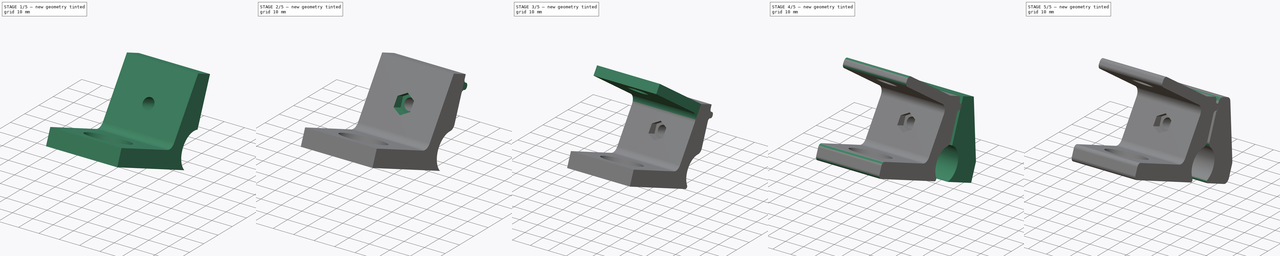
[diagram: build sequence overview — one tinted view per stage of 5, left to right]
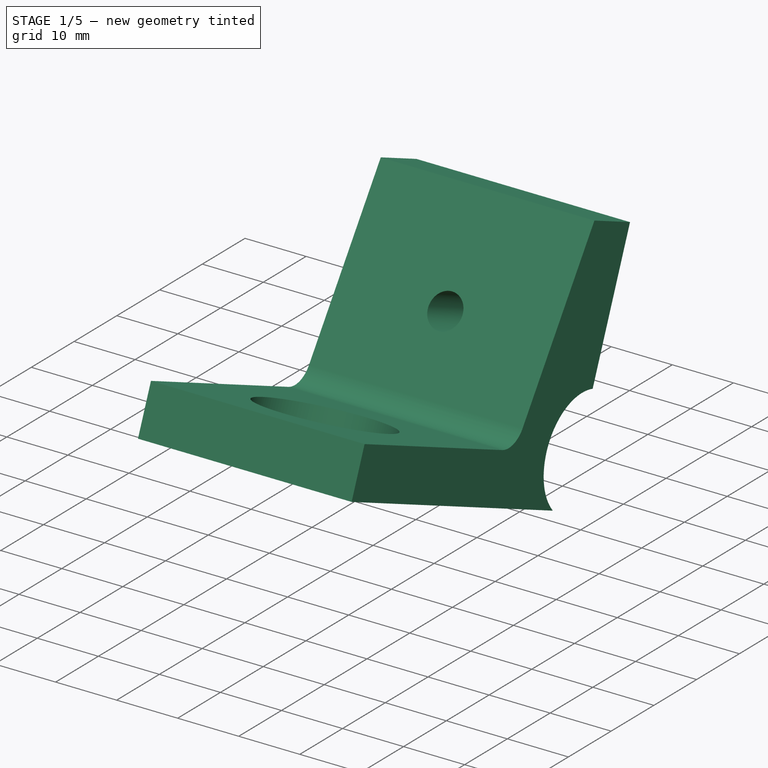
[diagram: stage 1 of 5 — iso view after this stage's code; geometry added in this stage tinted green]
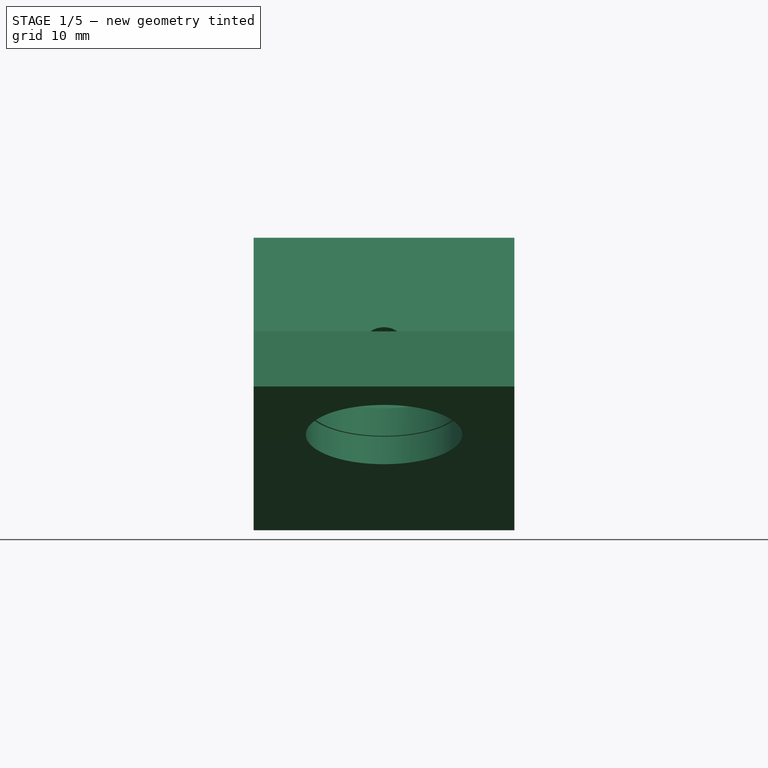
[diagram: stage 1 of 5 — front view after this stage's code; geometry added in this stage tinted green]
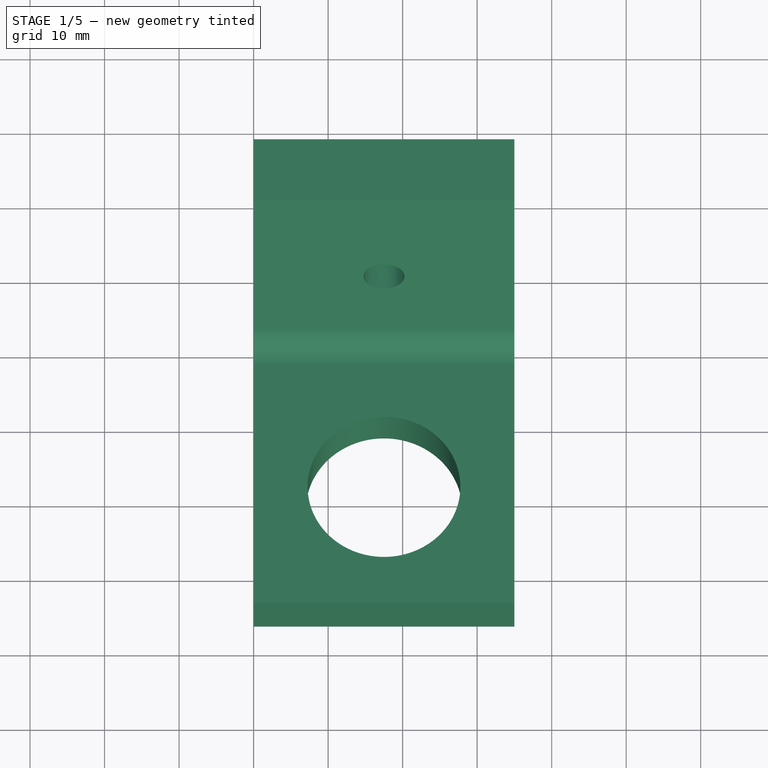
[diagram: stage 1 of 5 — top view after this stage's code; geometry added in this stage tinted green]
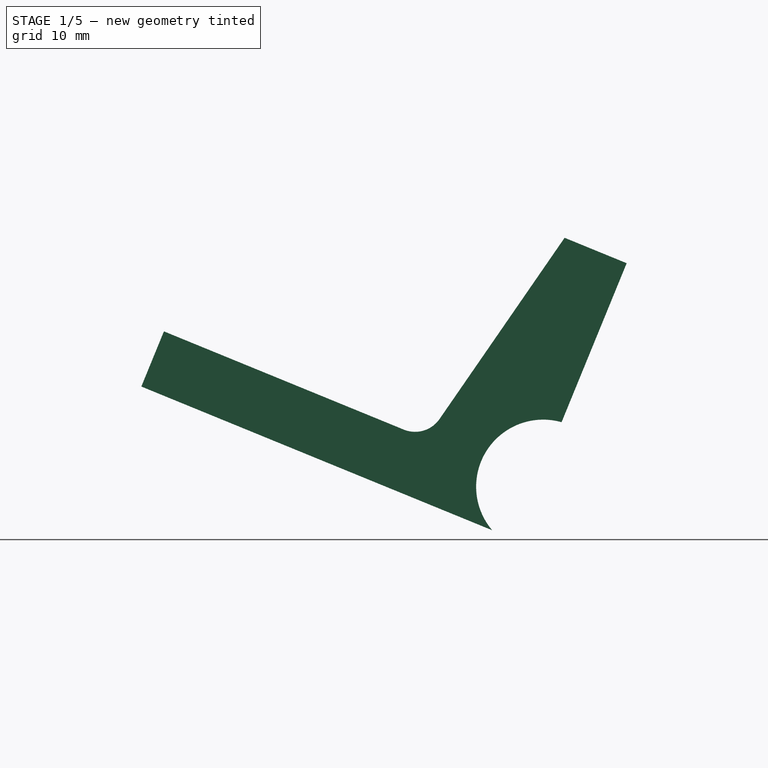
[diagram: stage 1 of 5 — right view after this stage's code; geometry added in this stage tinted green]
FCSTD DOCUMENT  (FreeCAD 0.18R16155 (Git))
Label: rim_to_rod_adapter_for_120cm_dish
License: All rights reserved
LicenseURL: http://en.wikipedia.org/wiki/All_rights_reserved
objects: Sketcher::SketchObject×11, PartDesign::Fillet×8, PartDesign::Pocket×5, PartDesign::Pad×4, PartDesign::Hole×3, PartDesign::Plane×3, PartDesign::Body×2, PartDesign::Chamfer×1, App::Part×1
note: 49 computed .brp shape members not serialized (recipe doc carries the construction recipe); baked Part::Feature solids carry a one-line shape summary decoded from their .brp

FEATURE [Sketcher::SketchObject] Sketch
  MapMode = 5
  Placement = pos=(0,0,0) rot=(0.57735,0.57735,0.57735;2.0944rad)
  Support = -> [YZ_Plane001]
  expr: Constraints[72] = Constraints.rim_dia / 2 - 1mm
  sketch-geometry (28):
    g0: GeomPoint X=-450 Y=0 Z=0
    g1: ArcOfParabola [constr] CenterX=0 CenterY=0 CenterZ=0 NormalX=0 NormalY=0 NormalZ=1 Focal=450 AngleXU=-3.14159 StartAngle=-600 EndAngle=0
    g2: GeomPoint X=-450 Y=0 Z=0
    g3: LineSegment [constr] StartX=0 StartY=0 StartZ=0 EndX=-450 EndY=0 EndZ=0
    g4: Circle [constr] CenterX=-192.512 CenterY=604.992 CenterZ=0 NormalX=0 NormalY=0 NormalZ=1 AngleXU=0 Radius=9
    g5: GeomPoint X=-200 Y=600 Z=0
    g6: ArcOfParabola [constr] CenterX=2 CenterY=0 CenterZ=0 NormalX=0 NormalY=0 NormalZ=1 Focal=450 AngleXU=-3.14159 StartAngle=-596.588 EndAngle=0
    g7: GeomPoint X=-448 Y=0 Z=0
    g8: LineSegment [constr] StartX=2 StartY=0 StartZ=0 EndX=-448 EndY=0 EndZ=0
    g9: LineSegment [constr] StartX=0 StartY=0 StartZ=0 EndX=2 EndY=0 EndZ=0
    g10: GeomPoint X=-195.732 Y=596.588 Z=0
    g11: GeomPoint X=-195.732 Y=596.588 Z=0
    g12: ArcOfCircle [constr] CenterX=-192.512 CenterY=604.992 CenterZ=0 NormalX=0 NormalY=0 NormalZ=1 AngleXU=0 Radius=9 StartAngle=4.34646 EndAngle=10.0128
    g13: LineSegment [constr] StartX=-450 StartY=0 StartZ=0 EndX=-200.84 EndY=608.403 EndZ=0
    g14: LineSegment StartX=-199.359 StartY=599.152 StartZ=0 EndX=-246.441 EndY=618.433 EndZ=0
    g15: LineSegment [constr] StartX=-191.728 StartY=596.026 StartZ=0 EndX=-177.847 EndY=590.342 EndZ=0
    g16: LineSegment StartX=-246.441 StartY=618.433 StartZ=0 EndX=-243.409 EndY=625.836 EndZ=0
    g17: LineSegment [constr] StartX=-189.638 StartY=638.395 StartZ=0 EndX=-171.13 EndY=630.815 EndZ=0
    g18: LineSegment [constr] StartX=-171.13 StartY=630.815 StartZ=0 EndX=-174.815 EndY=597.745 EndZ=0
    g19: LineSegment [constr] StartX=-174.815 StartY=597.745 StartZ=0 EndX=-177.847 EndY=590.342 EndZ=0
    g20: LineSegment [constr] StartX=-189.638 StartY=638.395 StartZ=0 EndX=-204.797 EndY=601.379 EndZ=0
    g21: LineSegment [constr] StartX=-192.512 StartY=604.992 StartZ=0 EndX=-180.384 EndY=634.605 EndZ=0
    g22: LineSegment StartX=-181.31 StartY=634.984 StartZ=0 EndX=-190.047 EndY=613.648 EndZ=0
    g23: LineSegment StartX=-189.638 StartY=638.395 StartZ=0 EndX=-181.31 EndY=634.984 EndZ=0
    g24: ArcOfCircle CenterX=-192.512 CenterY=604.992 CenterZ=0 NormalX=0 NormalY=0 NormalZ=1 AngleXU=0 Radius=9 StartAngle=1.29344 EndAngle=3.84781
    g25: LineSegment StartX=-189.638 StartY=638.395 StartZ=0 EndX=-208.243 EndY=611.435 EndZ=0
    g26: LineSegment StartX=-243.409 StartY=625.836 StartZ=0 EndX=-208.243 EndY=611.435 EndZ=0
    g27: LineSegment [constr] StartX=-199.359 StartY=599.152 StartZ=0 EndX=-195.543 EndY=597.589 EndZ=0
  constraints (75):
    c: PointOnObject(g0,g-1)
    c: InternalAlignment(g2,g1)
    c: Coincident(g2,g3)
    c: Coincident(g1,g3)
    c: Coincident(g2,g0)
    c: Coincident(g1,g-1)
    c: DistanceX(g0,g1) = 450
    c: DistanceY(g1,g1) = 600
    c: Horizontal(g1,g1)
    c: PointOnObject(g5,g4)
    c: Tangent(g1,g4,g5) = -1.5708
    c: Coincident(g5,g1)
    c: Diameter(g4) = 18  'rim_dia'
    c: PointOnObject(g6,g-1)
    c: InternalAlignment(g7,g6)
    c: Coincident(g7,g8)
    c: Coincident(g6,g8)
    c: PointOnObject(g7,g3)
    c: DistanceX(g1,g6) = 2  'thickness'
    c: DistanceX(g0,g7) = 2
    c: Horizontal(g6,g6)
    c: Coincident(g9,g1)
    c: Coincident(g9,g6)
    c: Coincident(g10,g11)
    c: Coincident(g10,g6)
    c: Coincident(g12,g4)
    c: Coincident(g12,g1)
    c: Coincident(g12,g6)
    c: DistanceX(g1,g1) = 200
    c: Distance(g1,g0) = 650
    c: Tangent(g13,g12)
    c: Coincident(g13,g0)
    c: Perpendicular(g13,g14)
    c: PointOnObject(g14,g4)
    c: Tangent(g15,g14)
    c: Perpendicular(g15,g19)
    c: Perpendicular(g14,g16)
    c: Equal(g19,g16)
    c: Coincident(g19,g18)
    c: Coincident(g18,g17)
    c: Coincident(g16,g14)
    c: Distance(g16) = 8
    c: Distance(g15,g14) = 8.24621
    c: Coincident(g19,g15)
    c: Parallel(g17,g14)
    c: PointOnObject(g20,g14)
    c: Perpendicular(g14,g20)
    c: Distance(g20) = 40
    c: Distance(g17) = 20
    c: Perpendicular(g14,g21)
    c: Symmetric(g17,g17,g21)
    c: Distance(g15) = 15
    c: PointOnObject(g13,g4)
    c: PointOnObject(g15,g4)
    c: PointOnObject(g22,g17)
    c: Coincident(g23,g22)
    c: Perpendicular(g14,g22)
    c: Coincident(g24,g14)
    c: Coincident(g24,g4)
    c: Coincident(g24,g22)
    c: Coincident(g25,g26)
    c: Coincident(g23,g25)
    c: Coincident(g23,g17)
    c: Parallel(g26,g14)
    c: Coincident(g16,g26)
    c: Distance(g26) = 38
    c: Distance(g21,g22) = 1
    c: Distance(g25,g13) = 8
    c: Coincident(g21,g24)
    c: Coincident(g20,g23)
    c: Parallel(g27,g14)
    c: Coincident(g27,g14)
    c: Distance(g27,g24) = 8
    c: PointOnObject(g27,g21)
    c: Distance(g20) = 40
FEATURE [PartDesign::Pad] Pad
  Length = 35
  Length2 = 100
  Placement = pos=(0,0,0) rot=(0.57735,0.57735,0.57735;2.0944rad)
  Profile = -> Sketch
  Type = 0
FEATURE [PartDesign::Fillet] Fillet
  Base = -> Pad [Edge17]
  BaseFeature = -> Pad
  Placement = pos=(0,0,0) rot=(0.57735,0.57735,0.57735;2.0944rad)
  Radius = 4
FEATURE [PartDesign::Hole] Hole
  BaseFeature = -> Fillet
  Depth = 25
  DepthType = 1
  Diameter = 20.5
  DrillPoint = 1
  DrillPointAngle = 118
  HoleCutCountersinkAngle = 90
  HoleCutDepth = 4
  HoleCutDiameter = 21
  HoleCutType = 1
  ModelActualThread = false
  Placement = pos=(0,0,0) rot=(0.57735,0.57735,0.57735;2.0944rad)
  Profile = -> Sketch001
  Tapered = false
  TaperedAngle = 90
  ThreadAngle = 0
  ThreadClass = 0
  ThreadCutOffInner = 0
  ThreadCutOffOuter = 0
  ThreadDirection = 0
  ThreadFit = 0
  ThreadPitch = 0
  ThreadSize = 0
  ThreadType = 0
  Threaded = false
FEATURE [PartDesign::Plane] DatumPlane
  AttachmentOffset = pos=(0,0,6) rot=(0,0,1;0rad)
  Length = 753.21
  MapMode = 5
  Placement = pos=(-2.752e-13,-372.412,152.514) rot=(0.638831,0.638831,0.428706;3.9516rad)
  ResizeMode = 0
  Support = -> [Hole]
  Width = 80.9319
FEATURE [Sketcher::SketchObject] Sketch003
  ExternalGeometry = -> [Hole]
  MapMode = 5
  Placement = pos=(-2.796e-13,-377.965,154.788) rot=(0.638831,0.638831,0.428706;3.9516rad)
  Support = -> [Hole]
  sketch-geometry (3):
    g0: Circle CenterX=501.904 CenterY=17.5 CenterZ=0 NormalX=0 NormalY=0 NormalZ=1 AngleXU=0 Radius=3.36332
    g1: GeomPoint X=495.848 Y=17.5 Z=0
    g2: LineSegment [constr] StartX=495.848 StartY=17.5 StartZ=0 EndX=501.904 EndY=17.5 EndZ=0
  constraints (5):
    c: Symmetric(g-6,g-6,g1)
    c: Coincident(g2,g1)
    c: Coincident(g2,g0)
    c: Perpendicular(g-6,g2)
    c: Distance(g0,g-3) = 17  'screw_dist_from_outer_edge'
FEATURE [PartDesign::Hole] Hole001
  BaseFeature = -> Hole
  Depth = 25
  DepthType = 1
  Diameter = 5.5
  DrillPoint = 1
  DrillPointAngle = 118
  HoleCutCountersinkAngle = 90
  HoleCutDepth = 0
  HoleCutDiameter = 5
  HoleCutType = 0
  ModelActualThread = false
  Placement = pos=(0,0,0) rot=(0.57735,0.57735,0.57735;2.0944rad)
  Profile = -> Sketch003
  Tapered = false
  TaperedAngle = 90
  ThreadAngle = 60
  ThreadClass = 0
  ThreadCutOffInner = 0.0866025
  ThreadCutOffOuter = 0.173205
  ThreadDirection = 0
  ThreadFit = 0
  ThreadPitch = 0.8
  ThreadSize = 6
  ThreadType = 1
  Threaded = false
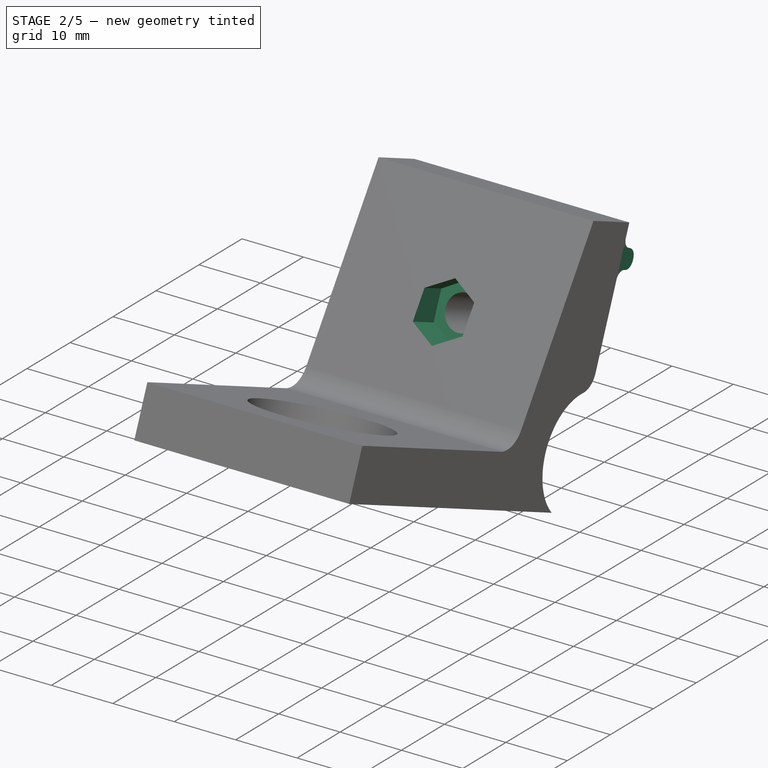
[diagram: stage 2 of 5 — iso view after this stage's code; geometry added in this stage tinted green]
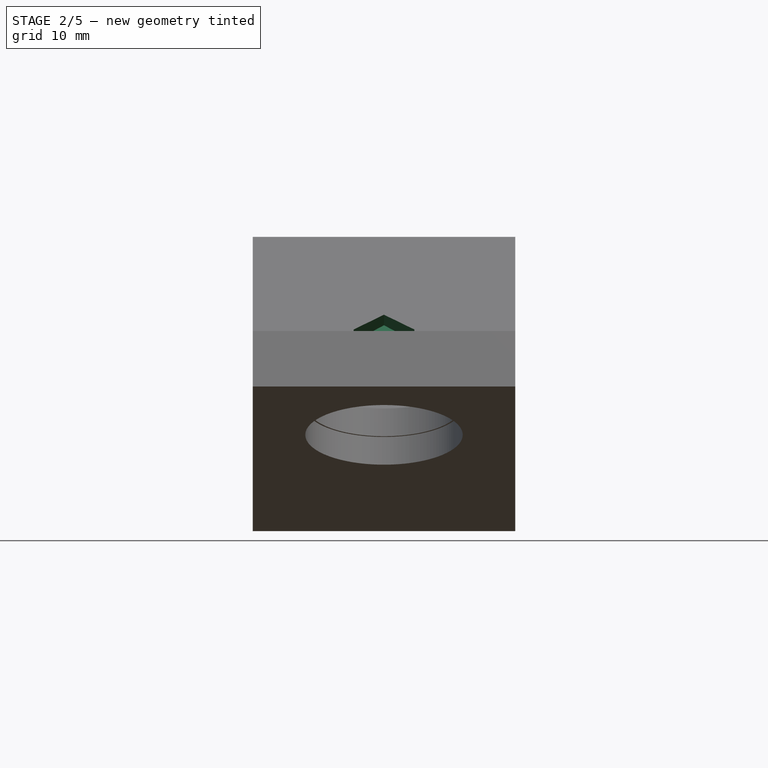
[diagram: stage 2 of 5 — front view after this stage's code; geometry added in this stage tinted green]
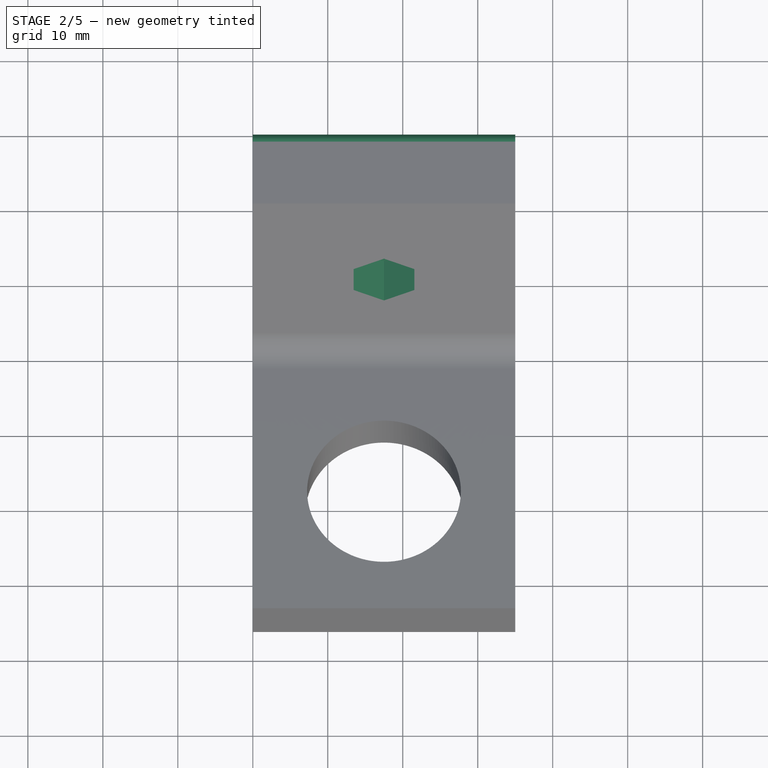
[diagram: stage 2 of 5 — top view after this stage's code; geometry added in this stage tinted green]
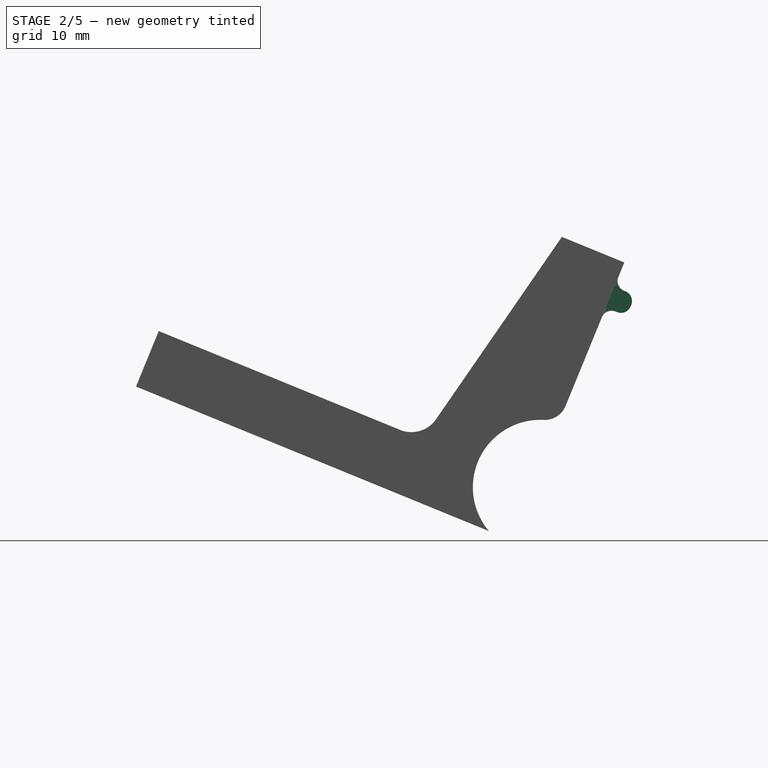
[diagram: stage 2 of 5 — right view after this stage's code; geometry added in this stage tinted green]
FEATURE [PartDesign::Plane] DatumPlane002
  AttachmentOffset = pos=(0,0,-8) rot=(0,0,1;0rad)
  Length = 753.21
  MapMode = 11
  Placement = pos=(17.5,-195.155,622.284) rot=(0.638831,0.638831,0.428706;3.9516rad)
  ResizeMode = 0
  Support = -> [Hole001]
  Width = 80.9319
FEATURE [Sketcher::SketchObject] Sketch005
  MapMode = 5
  Placement = pos=(17.5,-195.155,622.284) rot=(0.638831,0.638831,0.428706;3.9516rad)
  Support = -> [DatumPlane002]
  sketch-geometry (7):
    g0: LineSegment StartX=2.33827 StartY=-4.05 StartZ=0 EndX=4.67654 EndY=1.99458e-11 EndZ=0
    g1: LineSegment StartX=4.67654 StartY=1.99458e-11 StartZ=0 EndX=2.33827 EndY=4.05 EndZ=0
    g2: LineSegment StartX=2.33827 StartY=4.05 StartZ=0 EndX=-2.33827 EndY=4.05 EndZ=0
    g3: LineSegment StartX=-2.33827 StartY=4.05 StartZ=0 EndX=-4.67654 EndY=1.74598e-11 EndZ=0
    g4: LineSegment StartX=-4.67654 StartY=1.74598e-11 StartZ=0 EndX=-2.33827 EndY=-4.05 EndZ=0
    g5: LineSegment StartX=-2.33827 StartY=-4.05 StartZ=0 EndX=2.33827 EndY=-4.05 EndZ=0
    g6: Circle [constr] CenterX=0 CenterY=0 CenterZ=0 NormalX=0 NormalY=0 NormalZ=1 AngleXU=0 Radius=4.67654
  constraints (16):
    c: Coincident(g0,g1)
    c: Coincident(g1,g2)
    c: Coincident(g2,g3)
    c: Coincident(g3,g4)
    c: Coincident(g4,g5)
    c: Coincident(g5,g0)
    c: Equal(g0, g1-g5) x5
    c: PointOnObject(g0,g6)
    c: PointOnObject(g1,g6)
    c: PointOnObject(g2,g6)
    c: PointOnObject(g3,g6)
    c: PointOnObject(g4,g6)
    c: PointOnObject(g5,g6)
    c: Coincident(g6,g-1)
    c: Horizontal(g2)
    c: Distance(g2,g4) = 8.1
FEATURE [PartDesign::Pocket] Pocket001
  BaseFeature = -> Hole001
  Length = 15
  Length2 = 100
  Placement = pos=(0,0,0) rot=(0.57735,0.57735,0.57735;2.0944rad)
  Profile = -> Sketch005
  Type = 0
FEATURE [Sketcher::SketchObject] Sketch006
  ExternalGeometry = -> [Pocket001]
  MapMode = 5
  Placement = pos=(-3.827e-13,-377.965,154.788) rot=(0.638831,0.638831,0.428706;3.9516rad)
  Support = -> [Pocket001]
  sketch-geometry (6):
    g0: LineSegment StartX=515.404 StartY=35 StartZ=0 EndX=515.404 EndY=-8.811e-13 EndZ=0
    g1: LineSegment StartX=515.404 StartY=-8.83e-13 StartZ=0 EndX=512.404 EndY=-8.83e-13 EndZ=0
    g2: LineSegment StartX=512.404 StartY=-8.83e-13 StartZ=0 EndX=512.404 EndY=35 EndZ=0
    g3: LineSegment StartX=512.404 StartY=35 StartZ=0 EndX=515.404 EndY=35 EndZ=0
    g4: LineSegment StartX=515.404 StartY=35 StartZ=0 EndX=515.404 EndY=-8.811e-13 EndZ=0
    g5: GeomPoint X=513.904 Y=35 Z=0
  constraints (15):
    c: Coincident(g1,g2)
    c: Coincident(g2,g3)
    c: Coincident(g3,g4)
    c: Coincident(g4,g1)
    c: Horizontal(g1)
    c: Horizontal(g3)
    c: Vertical(g2)
    c: Coincident(g1,g0)
    c: Coincident(g0,g3)
    c: DistanceX(g3,g3) = 3
    c: Horizontal(g-3,g0)
    c: Symmetric(g0,g2,g5)
    c: DistanceX(g5,g-3) = 5
    c: Equal(g0,g-3)
    c: Equal(g1,g3)
FEATURE [PartDesign::Pad] Pad002
  BaseFeature = -> Pocket001
  Length = 3
  Length2 = 100
  Placement = pos=(0,0,0) rot=(0.57735,0.57735,0.57735;2.0944rad)
  Profile = -> Sketch006
  Type = 0
FEATURE [PartDesign::Fillet] Fillet002
  Base = -> Pad002 [Edge43,Edge63,Edge62,Edge39]
  BaseFeature = -> Pad002
  Placement = pos=(0,0,0) rot=(0.57735,0.57735,0.57735;2.0944rad)
  Radius = 1.4
FEATURE [PartDesign::Fillet] Fillet004
  Base = -> Fillet002 [Edge36]
  BaseFeature = -> Fillet002
  Placement = pos=(0,0,0) rot=(0.57735,0.57735,0.57735;2.0944rad)
  Radius = 3
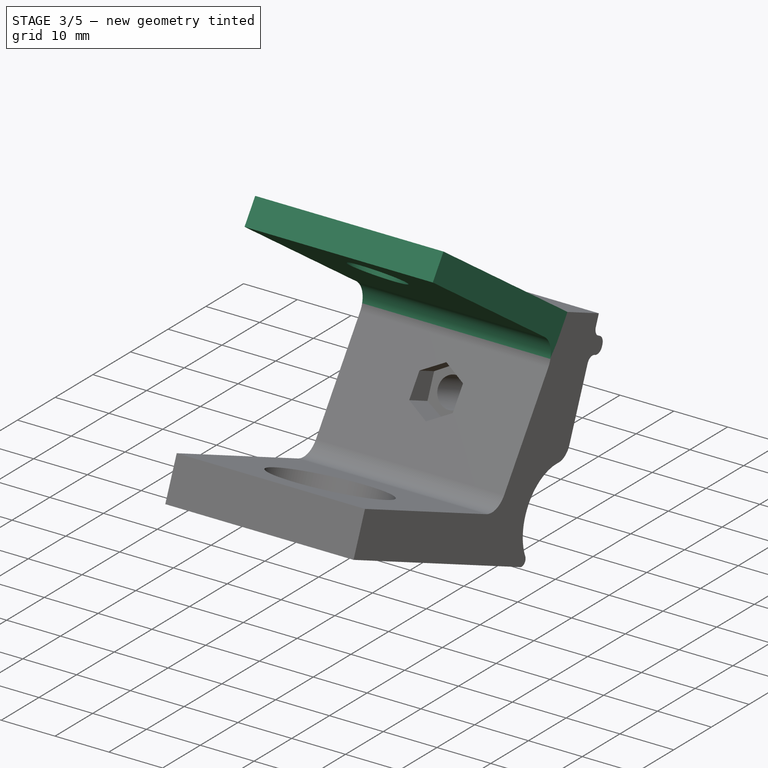
[diagram: stage 3 of 5 — iso view after this stage's code; geometry added in this stage tinted green]
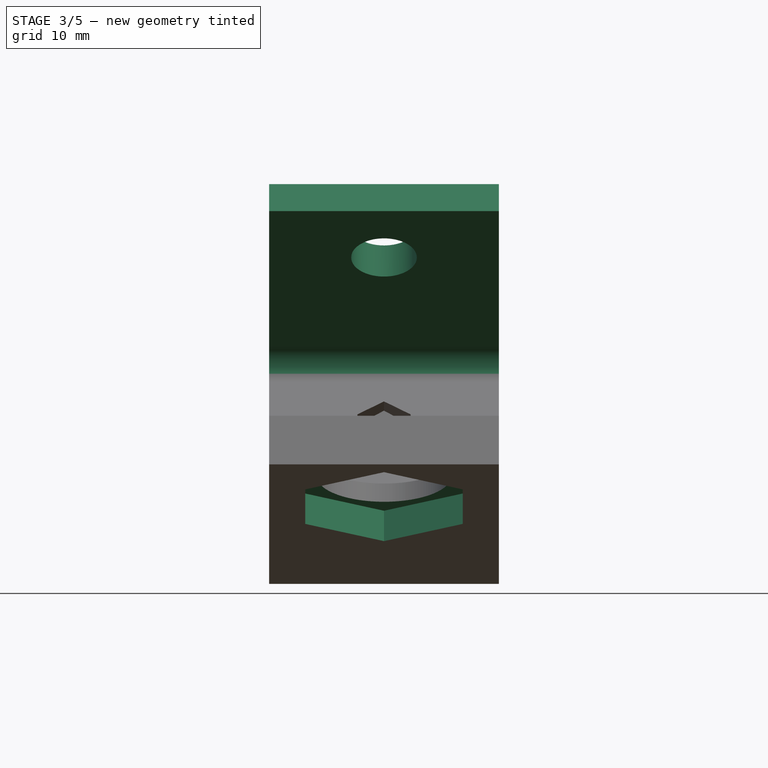
[diagram: stage 3 of 5 — front view after this stage's code; geometry added in this stage tinted green]
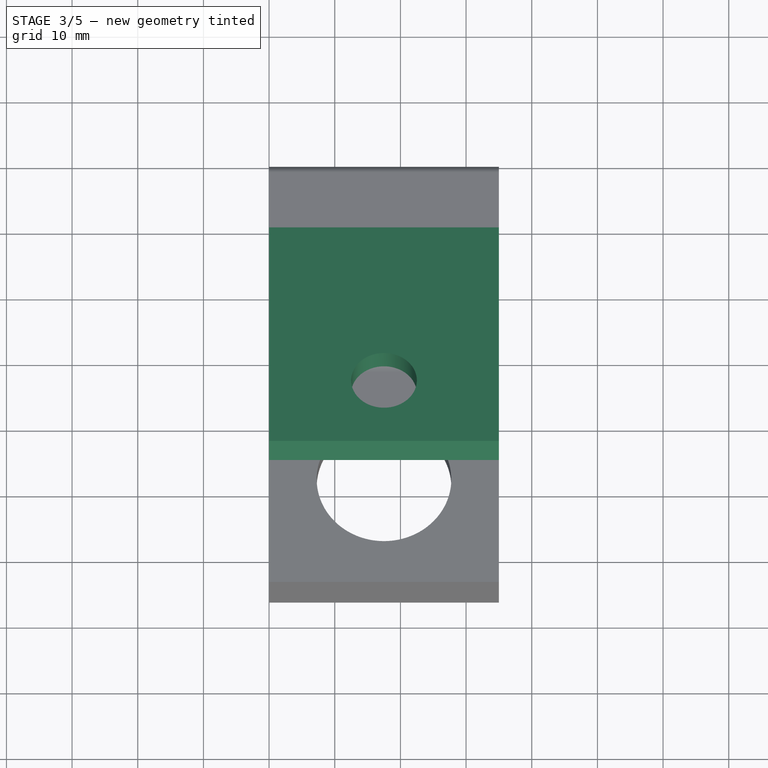
[diagram: stage 3 of 5 — top view after this stage's code; geometry added in this stage tinted green]
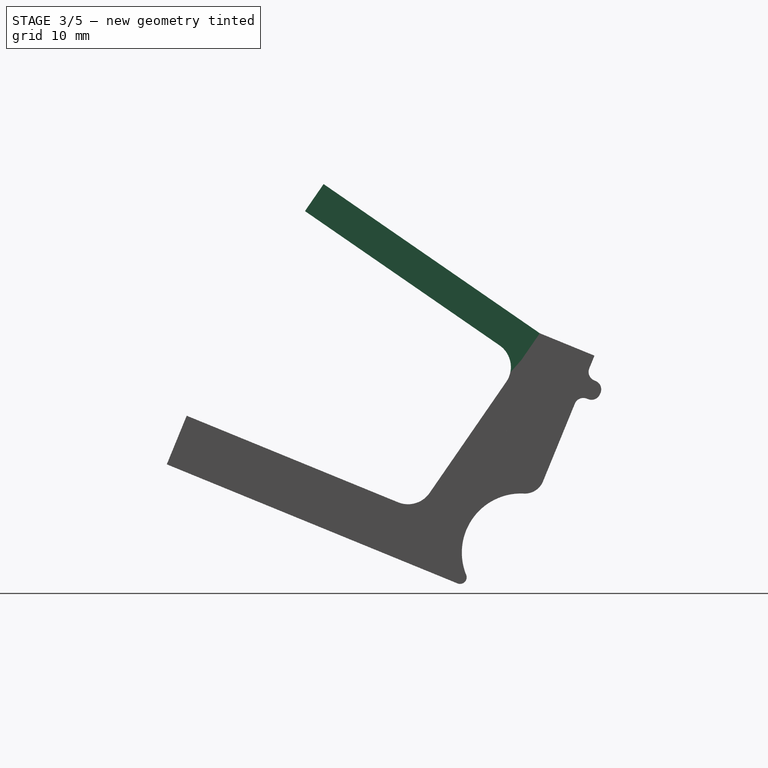
[diagram: stage 3 of 5 — right view after this stage's code; geometry added in this stage tinted green]
FEATURE [PartDesign::Fillet] Fillet006
  Base = -> Fillet004 [Edge27]
  BaseFeature = -> Fillet004
  Placement = pos=(0,0,0) rot=(0.57735,0.57735,0.57735;2.0944rad)
  Radius = 1
FEATURE [PartDesign::Body] Body001
  Group = -> [Pad001,DatumPlane001,Sketch004,Hole002,Pocket,Sketch007,Pocket002,Chamfer,Fillet007,Fillet008]
  Origin = -> Origin002
  Tip = -> Fillet008
FEATURE [Sketcher::SketchObject] Sketch008
  ExternalGeometry = -> [Fillet006]
  MapMode = 5
  Placement = pos=(-6.82e-13,181.496,443.18) rot=(0.700356,0.700356,-0.137853;2.86761rad)
  Support = -> [Fillet006]
  sketch-geometry (7):
    g0: LineSegment StartX=-452.36 StartY=5.5 StartZ=0 EndX=-438.504 EndY=5.5 EndZ=0
    g1: LineSegment StartX=-438.504 StartY=5.5 StartZ=0 EndX=-431.576 EndY=17.5 EndZ=0
    g2: LineSegment StartX=-431.576 StartY=17.5 StartZ=0 EndX=-438.504 EndY=29.5 EndZ=0
    g3: LineSegment StartX=-438.504 StartY=29.5 StartZ=0 EndX=-452.36 EndY=29.5 EndZ=0
    g4: LineSegment StartX=-452.36 StartY=29.5 StartZ=0 EndX=-459.288 EndY=17.5 EndZ=0
    g5: LineSegment StartX=-459.288 StartY=17.5 StartZ=0 EndX=-452.36 EndY=5.5 EndZ=0
    g6: Circle [constr] CenterX=-445.432 CenterY=17.5 CenterZ=0 NormalX=0 NormalY=0 NormalZ=1 AngleXU=0 Radius=13.8564
  constraints (16):
    c: Coincident(g0,g1)
    c: Coincident(g1,g2)
    c: Coincident(g2,g3)
    c: Coincident(g3,g4)
    c: Coincident(g4,g5)
    c: Coincident(g5,g0)
    c: Equal(g0, g1-g5) x5
    c: PointOnObject(g0,g6)
    c: PointOnObject(g1,g6)
    c: PointOnObject(g2,g6)
    c: PointOnObject(g3,g6)
    c: PointOnObject(g4,g6)
    c: PointOnObject(g5,g6)
    c: Parallel(g0,g-1)
    c: Distance(g0,g2) = 24
    c: Coincident(g6,g-3)
FEATURE [PartDesign::Pocket] Pocket003
  BaseFeature = -> Fillet006
  Length = 5
  Length2 = 100
  Placement = pos=(0,0,0) rot=(0.57735,0.57735,0.57735;2.0944rad)
  Profile = -> Sketch008
  Type = 0
FEATURE [Sketcher::SketchObject] Sketch009
  ExternalGeometry = -> [Pocket003]
  MapMode = 5
  Placement = pos=(-7.947e-13,-426.892,294.6) rot=(0.42147,0.42147,-0.802948;1.78852rad)
  Support = -> [Pocket003]
  sketch-geometry (4):
    g0: LineSegment StartX=-417.714 StartY=35 StartZ=0 EndX=-412.714 EndY=35 EndZ=0
    g1: LineSegment StartX=-412.714 StartY=35 StartZ=0 EndX=-412.714 EndY=-1.0019e-12 EndZ=0
    g2: LineSegment StartX=-412.714 StartY=-1.0019e-12 StartZ=0 EndX=-417.714 EndY=-1.0019e-12 EndZ=0
    g3: LineSegment StartX=-417.714 StartY=-1.0019e-12 StartZ=0 EndX=-417.714 EndY=35 EndZ=0
  constraints (11):
    c: Coincident(g0,g1)
    c: Coincident(g1,g2)
    c: Coincident(g2,g3)
    c: Coincident(g3,g0)
    c: Horizontal(g0)
    c: Horizontal(g2)
    c: Vertical(g1)
    c: Vertical(g3)
    c: Coincident(g0,g-4)
    c: PointOnObject(g1,g-5)
    c: DistanceX(g0,g0) = 5
FEATURE [PartDesign::Pad] Pad003
  BaseFeature = -> Pocket003
  Length = 40
  Length2 = 100
  Placement = pos=(0,0,0) rot=(0.57735,0.57735,0.57735;2.0944rad)
  Profile = -> Sketch009
  Type = 0
FEATURE [Sketcher::SketchObject] Sketch010
  ExternalGeometry = -> [Pad003]
  MapMode = 5
  Placement = pos=(-9.773e-13,181.496,443.18) rot=(0.700356,0.700356,-0.137853;2.86761rad)
  Support = -> [Pad003]
  sketch-geometry (1):
    g0: Circle CenterX=-445.432 CenterY=17.5 CenterZ=0 NormalX=0 NormalY=0 NormalZ=1 AngleXU=0 Radius=5
  constraints (2):
    c: Diameter(g0) = 10
    c: Coincident(g0,g-3)
FEATURE [PartDesign::Pocket] Pocket004
  BaseFeature = -> Pad003
  Length = 10
  Length2 = 100
  Placement = pos=(0,0,0) rot=(0.57735,0.57735,0.57735;2.0944rad)
  Profile = -> Sketch010
  Type = 1
FEATURE [PartDesign::Fillet] Fillet009
  Base = -> Pocket004 [Edge52]
  BaseFeature = -> Pocket004
  Placement = pos=(0,0,0) rot=(0.57735,0.57735,0.57735;2.0944rad)
  Radius = 4
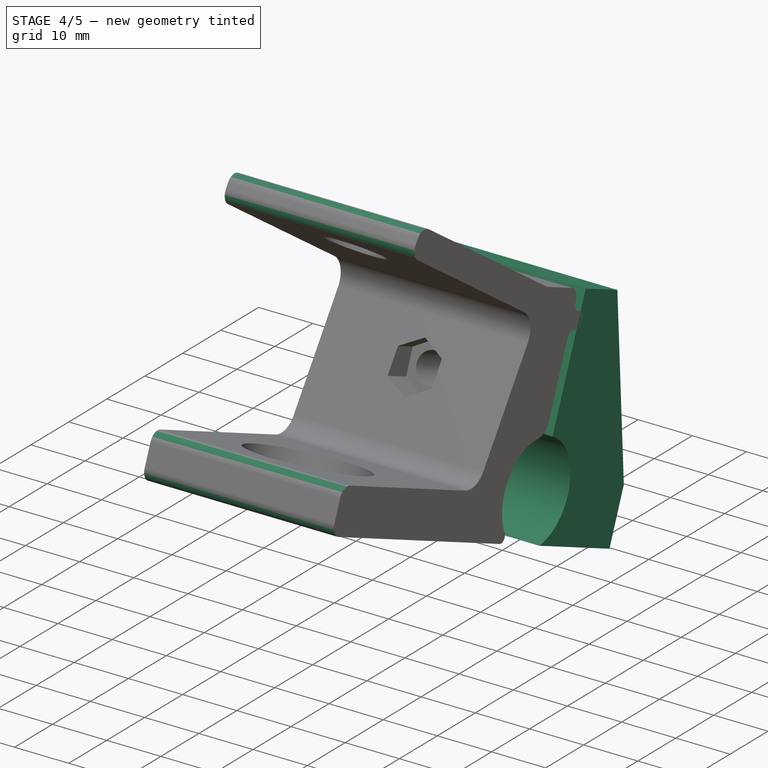
[diagram: stage 4 of 5 — iso view after this stage's code; geometry added in this stage tinted green]
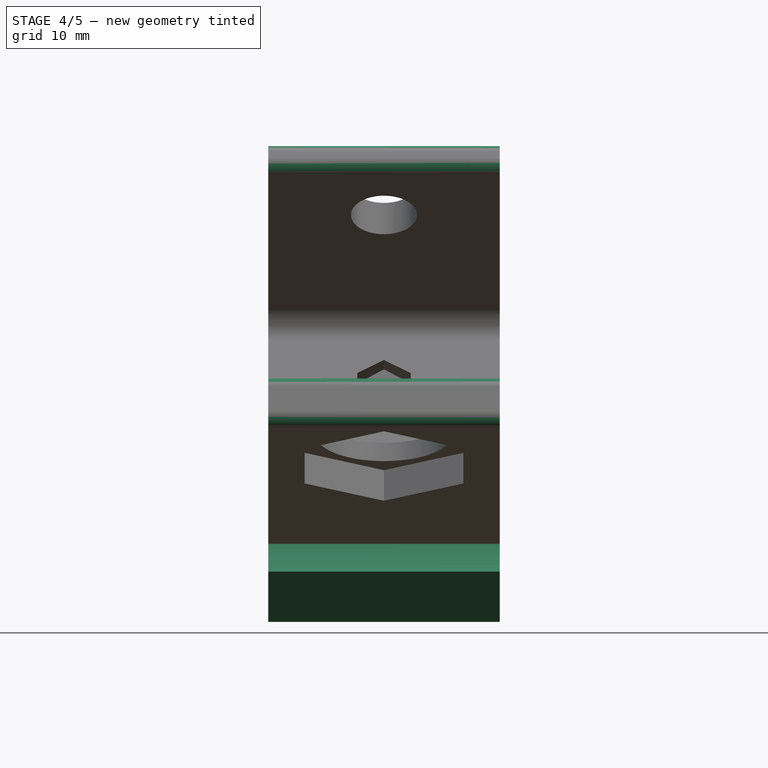
[diagram: stage 4 of 5 — front view after this stage's code; geometry added in this stage tinted green]
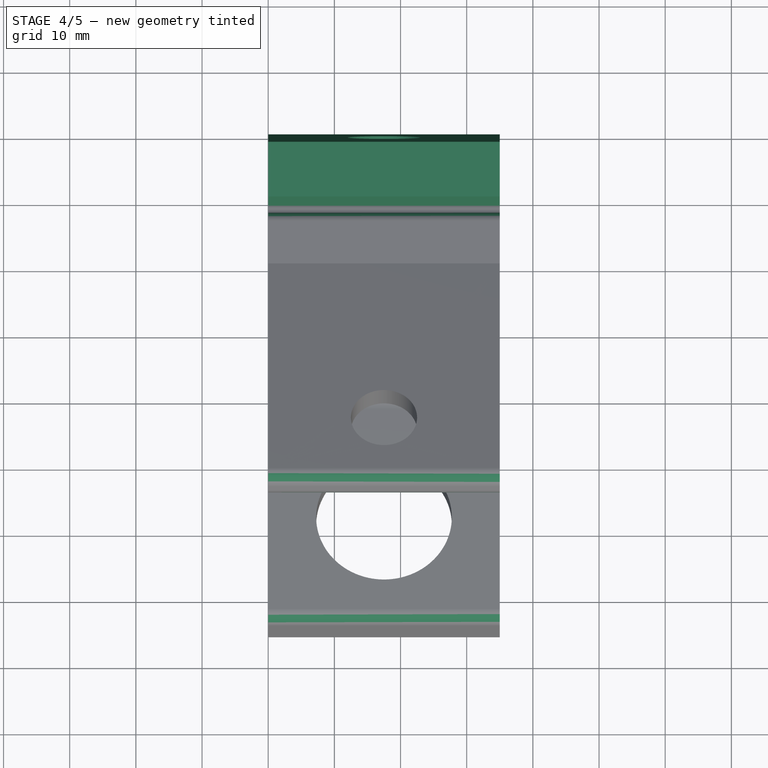
[diagram: stage 4 of 5 — top view after this stage's code; geometry added in this stage tinted green]
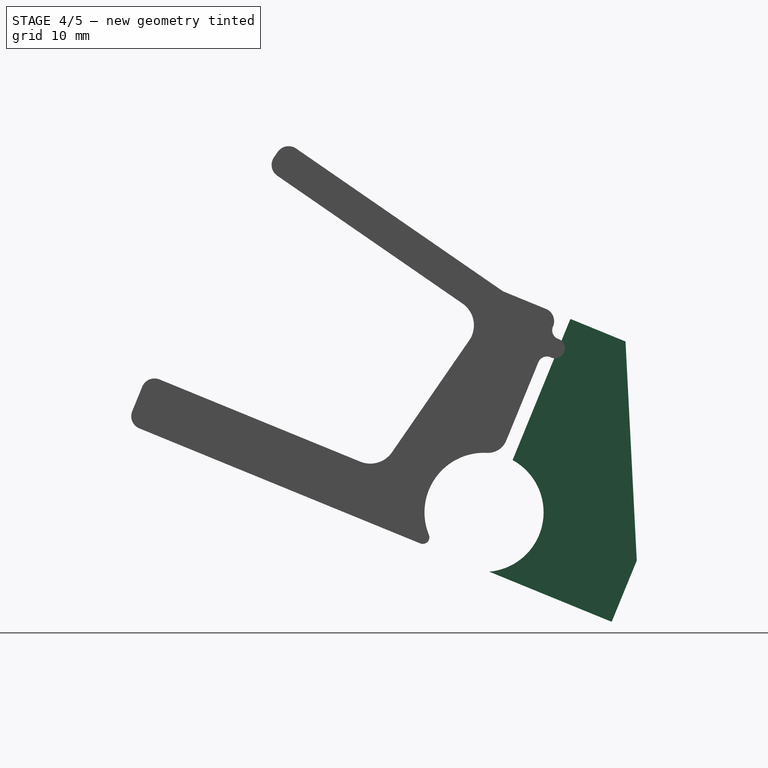
[diagram: stage 4 of 5 — right view after this stage's code; geometry added in this stage tinted green]
FEATURE [Sketcher::SketchObject] Sketch001
  ExternalGeometry = -> [Fillet]
  MapMode = 5
  Placement = pos=(-9.16e-14,181.496,443.18) rot=(0.700356,0.700356,-0.137853;2.86761rad)
  Support = -> [Fillet]
  sketch-geometry (3):
    g0: Circle CenterX=-445.432 CenterY=17.5 CenterZ=0 NormalX=0 NormalY=0 NormalZ=1 AngleXU=0 Radius=2.9091
    g1: GeomPoint X=-462.432 Y=17.5 Z=0
    g2: LineSegment [constr] StartX=-462.432 StartY=17.5 StartZ=0 EndX=-445.432 EndY=17.5 EndZ=0
  constraints (5):
    c: Symmetric(g-3,g-3,g1)
    c: Perpendicular(g-3,g2)
    c: Coincident(g0,g2)
    c: Coincident(g2,g1)
    c: Distance(g2) = 17
FEATURE [Sketcher::SketchObject] Sketch002
  ExternalGeometry = -> [Sketch]
  MapMode = 5
  Placement = pos=(0,0,0) rot=(0.57735,0.57735,0.57735;2.0944rad)
  Support = -> [YZ_Plane001]
  sketch-geometry (12):
    g0: LineSegment [constr] StartX=-192.512 StartY=604.992 StartZ=0 EndX=-180.384 EndY=634.605 EndZ=0
    g1: LineSegment StartX=-188.196 StartY=612.89 StartZ=0 EndX=-179.459 EndY=634.226 EndZ=0
    g2: Circle [constr] CenterX=-192.512 CenterY=604.992 CenterZ=0 NormalX=0 NormalY=0 NormalZ=1 AngleXU=0 Radius=9
    g3: GeomPoint X=-180.384 Y=634.605 Z=0
    g4: LineSegment [constr] StartX=-180.384 StartY=634.605 StartZ=0 EndX=-179.459 EndY=634.226 EndZ=0
    g5: ArcOfCircle CenterX=-192.512 CenterY=604.992 CenterZ=0 NormalX=0 NormalY=0 NormalZ=1 AngleXU=0 Radius=9 StartAngle=4.79958 EndAngle=7.35395
    g6: LineSegment StartX=-191.728 StartY=596.026 StartZ=0 EndX=-173.22 EndY=588.447 EndZ=0
    g7: LineSegment StartX=-169.43 StartY=597.701 StartZ=0 EndX=-171.13 EndY=630.815 EndZ=0
    g8: LineSegment StartX=-171.13 StartY=630.815 StartZ=0 EndX=-179.459 EndY=634.226 EndZ=0
    g9: LineSegment StartX=-173.22 StartY=588.447 StartZ=0 EndX=-169.43 EndY=597.701 EndZ=0
    g10: LineSegment [constr] StartX=-189.638 StartY=638.395 StartZ=0 EndX=-204.797 EndY=601.379 EndZ=0
    g11: LineSegment [constr] StartX=-171.13 StartY=630.815 StartZ=0 EndX=-186.289 EndY=593.799 EndZ=0
  constraints (33):
    c: Coincident(g2,g0)
    c: PointOnObject(g1,g2)
    c: Coincident(g4,g1)
    c: Coincident(g3,g4)
    c: Perpendicular(g1,g4)
    c: Distance(g4) = 1
    c: Coincident(g5,g0)
    c: Coincident(g5,g1)
    c: Coincident(g6,g5)
    c: Coincident(g1,g8)
    c: Coincident(g8,g7)
    c: Perpendicular(g1,g8)
    c: Coincident(g9,g6)
    c: Coincident(g9,g7)
    c: Perpendicular(g6,g9)
    c: Distance(g6) = 20
    c: Distance(g9) = 10
    c: Coincident(g0,g3)
    c: Equal(g-4,g2)
    c: PointOnObject(g-4,g2)
    c: PointOnObject(g-4,g2)
    c: Parallel(g6,g-5)
    c: Parallel(g1,g-3)
    c: Equal(g-3,g1)
    c: Parallel(g0,g-3)
    c: Distance(g8) = 9
    c: PointOnObject(g10,g-5)
    c: Coincident(g10,g-6)
    c: Perpendicular(g-5,g10)
    c: PointOnObject(g11,g6)
    c: Coincident(g11,g7)
    c: Perpendicular(g6,g11)
    c: Equal(g11,g10)
FEATURE [PartDesign::Pad] Pad001
  Length = 35
  Length2 = 100
  Placement = pos=(0,0,0) rot=(0.57735,0.57735,0.57735;2.0944rad)
  Profile = -> Sketch002
  Type = 0
FEATURE [PartDesign::Plane] DatumPlane001
  AttachmentOffset = pos=(0,0,13) rot=(0,0,1;0rad)
  Length = 705.7
  MapMode = 5
  Placement = pos=(-2.182e-13,-364.084,149.103) rot=(0.638831,0.638831,0.428706;3.9516rad)
  ResizeMode = 0
  Support = -> [Pad001]
  Width = 79.7521
FEATURE [Sketcher::SketchObject] Sketch004
  ExternalGeometry = -> [Pad001]
  MapMode = 5
  Placement = pos=(-2.182e-13,-364.084,149.103) rot=(0.638831,0.638831,0.428706;3.9516rad)
  Support = -> [DatumPlane001]
  expr: Constraints[4] = Sketch003.Constraints.screw_dist_from_outer_edge
  sketch-geometry (4):
    g0: Circle CenterX=-506.968 CenterY=13.1307 CenterZ=0 NormalX=0 NormalY=0 NormalZ=1 AngleXU=0 Radius=6.50117
    g1: Circle CenterX=501.904 CenterY=17.5 CenterZ=0 NormalX=0 NormalY=0 NormalZ=1 AngleXU=0 Radius=5.48126
    g2: GeomPoint X=518.904 Y=17.5 Z=0
    g3: LineSegment [constr] StartX=518.904 StartY=17.5 StartZ=0 EndX=501.904 EndY=17.5 EndZ=0
  constraints (5):
    c: Symmetric(g-3,g-3,g2)
    c: Coincident(g3,g2)
    c: Coincident(g3,g1)
    c: Perpendicular(g-3,g3)
    c: Distance(g3) = 17
FEATURE [PartDesign::Hole] Hole002
  BaseFeature = -> Pad001
  Depth = 25
  DepthType = 1
  Diameter = 5.5
  DrillPoint = 1
  DrillPointAngle = 118
  HoleCutCountersinkAngle = 90
  HoleCutDepth = 0
  HoleCutDiameter = 10
  HoleCutType = 2
  ModelActualThread = false
  Placement = pos=(0,0,0) rot=(0.57735,0.57735,0.57735;2.0944rad)
  Profile = -> Sketch004
  Tapered = false
  TaperedAngle = 90
  ThreadAngle = 0
  ThreadClass = 0
  ThreadCutOffInner = 0
  ThreadCutOffOuter = 0
  ThreadDirection = 0
  ThreadFit = 0
  ThreadPitch = 0
  ThreadSize = 6
  ThreadType = 1
  Threaded = false
FEATURE [PartDesign::Pocket] Pocket
  BaseFeature = -> Hole002
  Length = 11
  Length2 = 100
  Placement = pos=(0,0,0) rot=(0.57735,0.57735,0.57735;2.0944rad)
  Profile = -> Sketch004
  Reversed = true
  Type = 1
FEATURE [PartDesign::Fillet] Fillet010
  Base = -> Fillet009 [Edge36,Edge86,Edge32,Edge38,Edge89]
  BaseFeature = -> Fillet009
  Placement = pos=(0,0,0) rot=(0.57735,0.57735,0.57735;2.0944rad)
  Radius = 2
FEATURE [PartDesign::Body] Body  label="DishWithRim"
  Group = -> [Sketch,Pad,Fillet,Sketch001,Sketch002,Hole,DatumPlane,Sketch003,Hole001,DatumPlane002,Sketch005,Pocket001,Sketch006,Pad002,Fillet002,Fillet004,Fillet006,Sketch008,Pocket003,Sketch009,Pad003,Sketch010,Pocket004,Fillet009,Fillet010]
  Origin = -> Origin001
  Tip = -> Fillet010
FEATURE [App::Part] Part
  Group = -> [Body,Body001]
  Origin = -> Origin
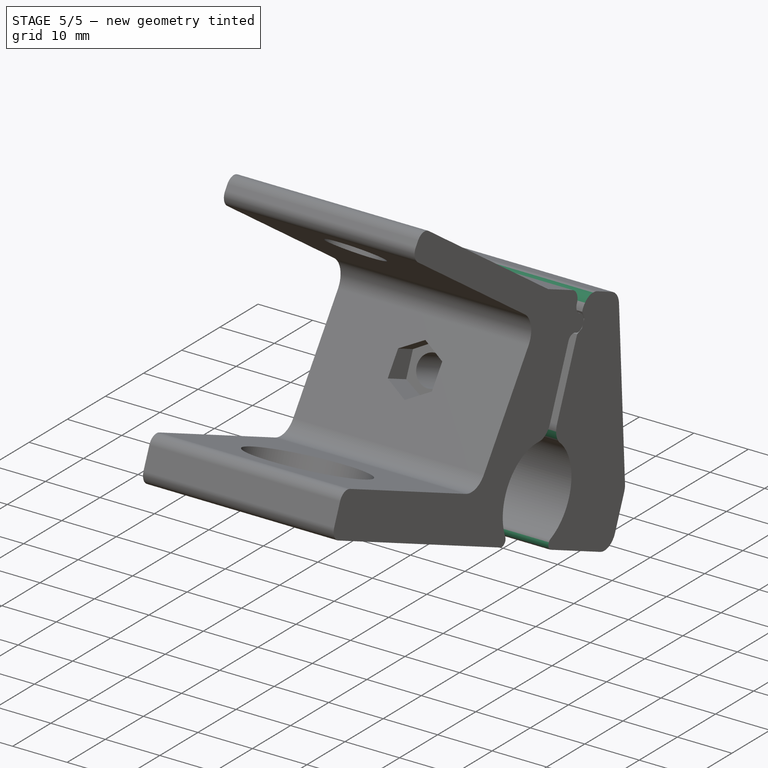
[diagram: stage 5 of 5 — iso view after this stage's code; geometry added in this stage tinted green]
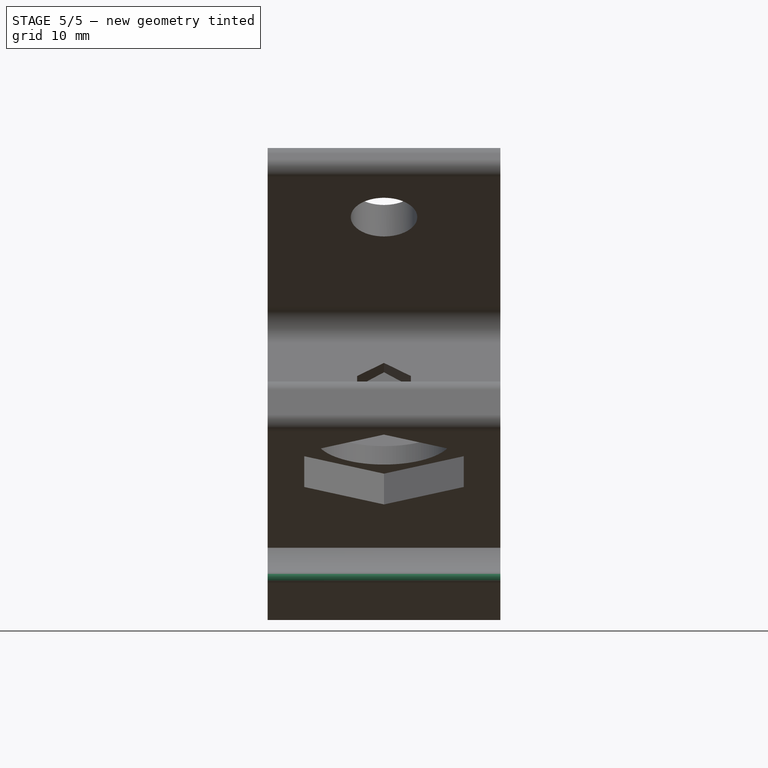
[diagram: stage 5 of 5 — front view after this stage's code; geometry added in this stage tinted green]
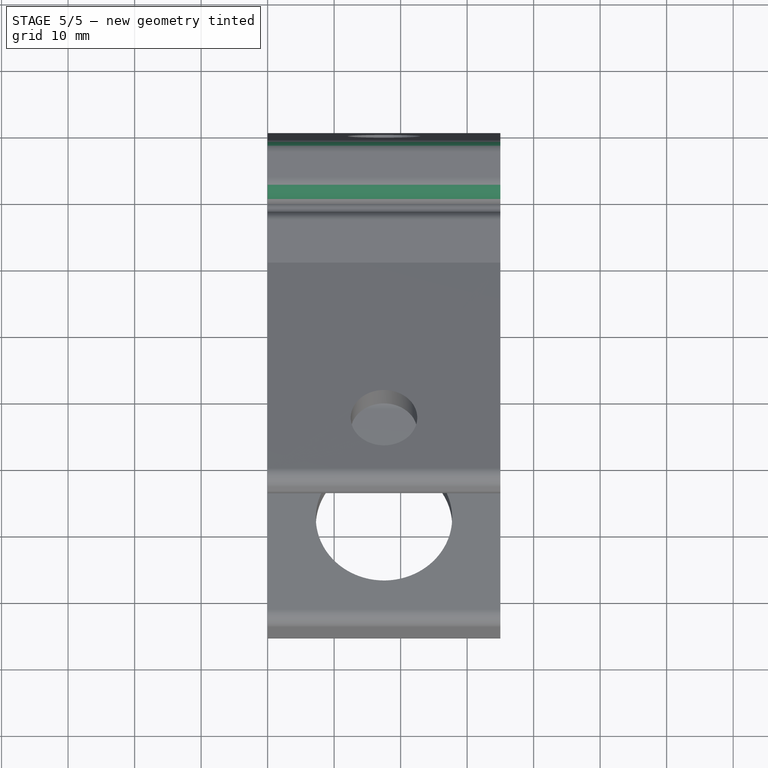
[diagram: stage 5 of 5 — top view after this stage's code; geometry added in this stage tinted green]
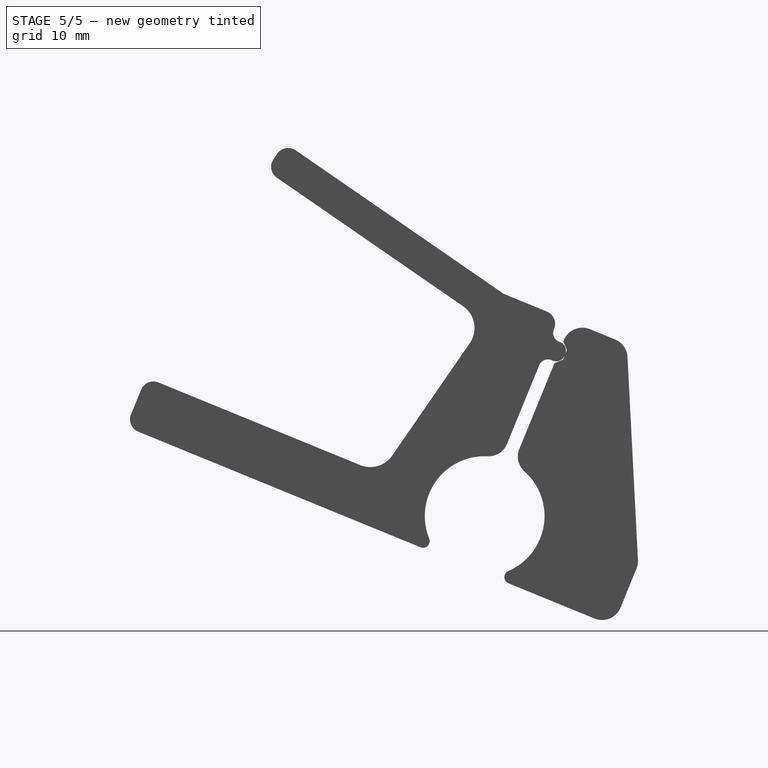
[diagram: stage 5 of 5 — right view after this stage's code; geometry added in this stage tinted green]
FEATURE [Sketcher::SketchObject] Sketch007
  ExternalGeometry = -> [Pocket]
  MapMode = 5
  Placement = pos=(-3.295e-13,-376.114,154.03) rot=(0.486763,0.486763,-0.725344;1.88653rad)
  Support = -> [Pocket]
  sketch-geometry (5):
    g0: LineSegment StartX=-515.654 StartY=35 StartZ=0 EndX=-512.154 EndY=35 EndZ=0
    g1: LineSegment StartX=-512.154 StartY=35 StartZ=0 EndX=-512.154 EndY=-6.821e-13 EndZ=0
    g2: LineSegment StartX=-512.154 StartY=-6.838e-13 StartZ=0 EndX=-515.654 EndY=-6.838e-13 EndZ=0
    g3: LineSegment StartX=-515.654 StartY=-6.838e-13 StartZ=0 EndX=-515.654 EndY=35 EndZ=0
    g4: GeomPoint X=-513.904 Y=35 Z=0
  constraints (13):
    c: Coincident(g0,g1)
    c: Coincident(g1,g2)
    c: Coincident(g2,g3)
    c: Coincident(g3,g0)
    c: Horizontal(g0)
    c: Horizontal(g2)
    c: Vertical(g1)
    c: Vertical(g3)
    c: Equal(g3,g-3)
    c: Horizontal(g0,g-3)
    c: DistanceX(g0,g0) = 3.5
    c: Symmetric(g0,g0,g4)
    c: DistanceX(g-3,g4) = 5
FEATURE [PartDesign::Pocket] Pocket002
  BaseFeature = -> Pocket
  Length = 1
  Length2 = 100
  Placement = pos=(0,0,0) rot=(0.57735,0.57735,0.57735;2.0944rad)
  Profile = -> Sketch007
  Type = 0
FEATURE [PartDesign::Chamfer] Chamfer
  Base = -> Pocket002 [Edge31,Edge32]
  BaseFeature = -> Pocket002
  Placement = pos=(0,0,0) rot=(0.57735,0.57735,0.57735;2.0944rad)
  Size = 0.99
FEATURE [PartDesign::Fillet] Fillet007
  Base = -> Chamfer [Edge31,Edge34,Edge26,Edge22,Edge18]
  BaseFeature = -> Chamfer
  Placement = pos=(0,0,0) rot=(0.57735,0.57735,0.57735;2.0944rad)
  Radius = 3
FEATURE [PartDesign::Fillet] Fillet008
  Base = -> Fillet007 [Edge51]
  BaseFeature = -> Fillet007
  Placement = pos=(0,0,0) rot=(0.57735,0.57735,0.57735;2.0944rad)
  Radius = 1
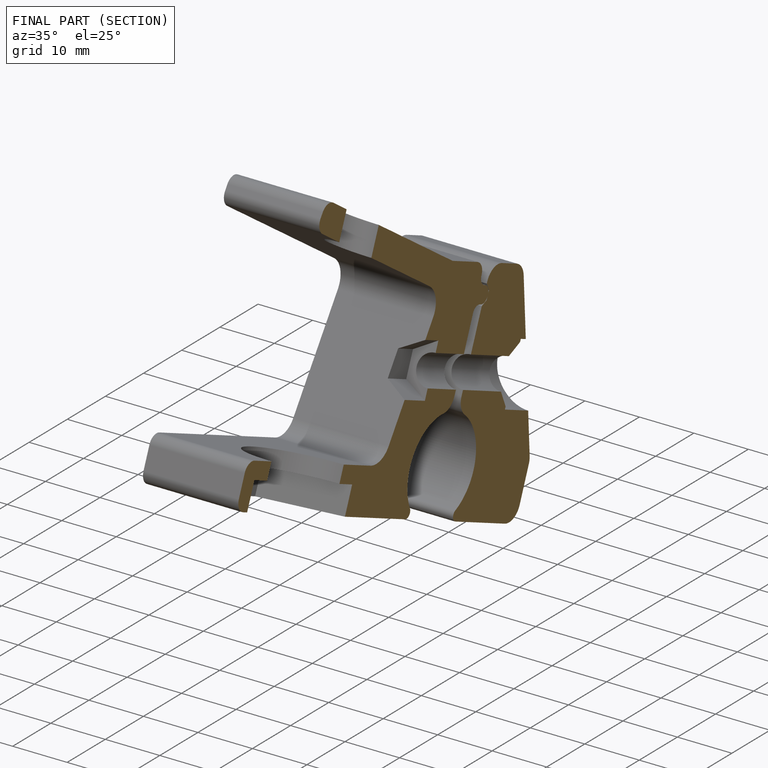
[diagram: finished part — half-section view (interior)]
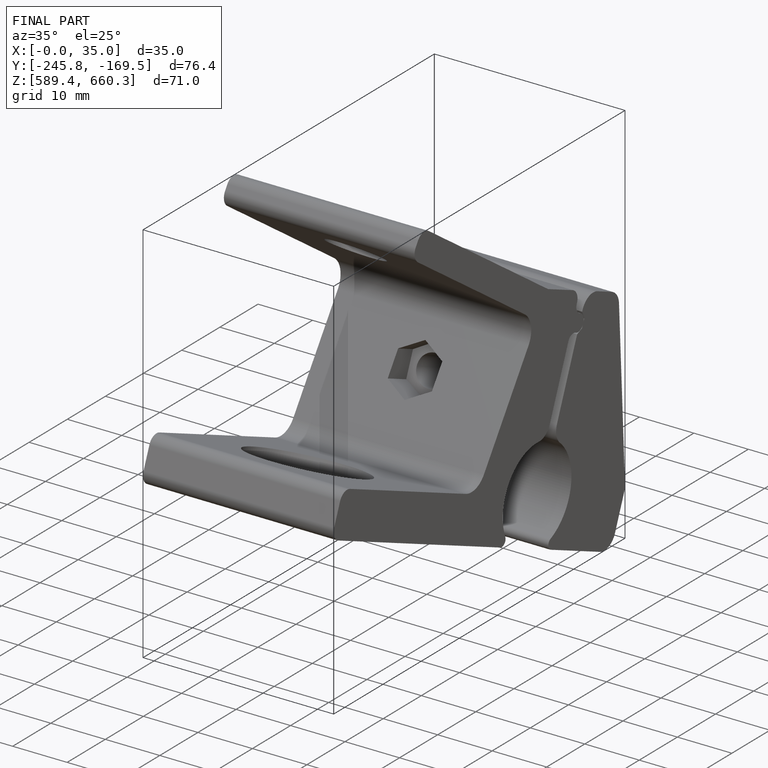
[diagram: finished part — iso view with bounding-box wireframe]
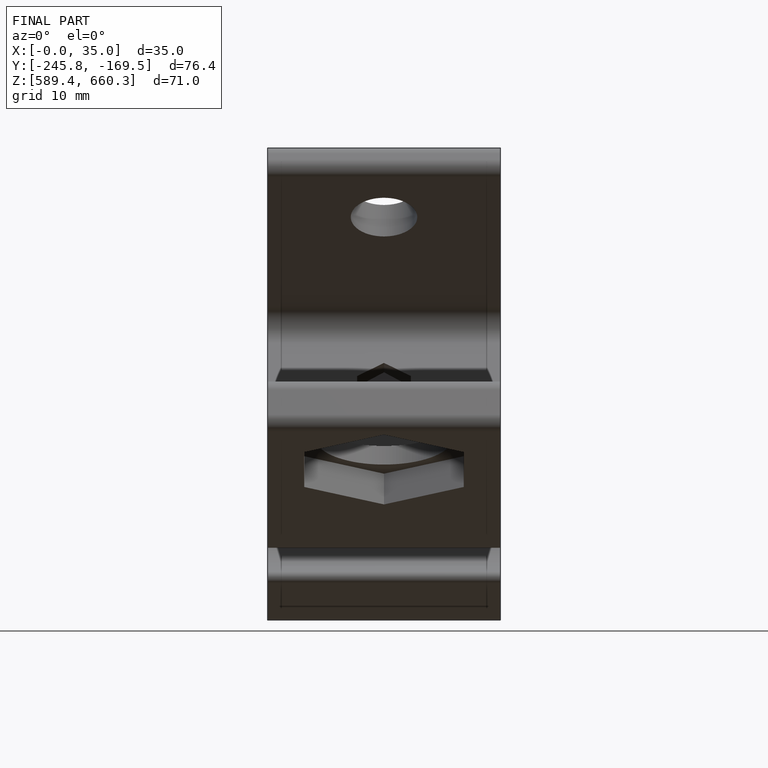
[diagram: finished part — front view with bounding-box wireframe]
